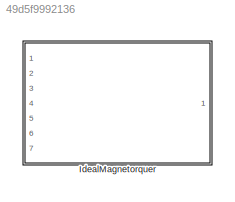
MODEL slx_49d5f9992136
KIND library
CONFIG AbsTol = auto
CONFIG EnableMultiTasking = off
CONFIG FixedStep = auto
CONFIG MaxStep = auto
CONFIG MinStep = auto
CONFIG RelTol = 1e-3
CONFIG SampleTimeConstraint = Unconstrained
CONFIG SolverName = VariableStepAuto
CONFIG StartTime = 0.0
CONFIG StopTime = 10.0
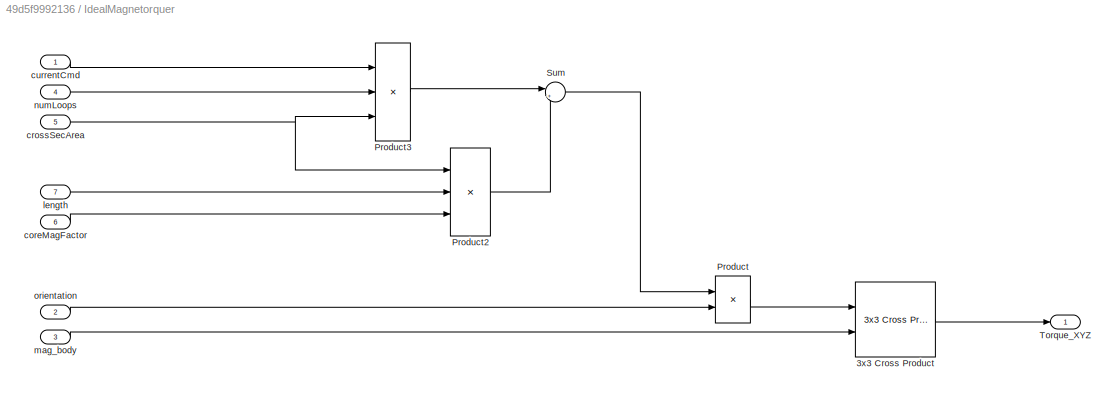
BLOCK [SubSystem] IdealMagnetorquer
  Ports = [7, 1]
  RequestExecContextInheritance = off
BLOCK [Reference] IdealMagnetorquer/3x3 Cross Product  REF=sharedutil/3x3 Cross Product
  Ports = [2, 1]
  SourceBlock = sharedutil/3x3 Cross Product
  SourceProductBaseCode = AE,PW,MT,UV,VE,VP
  SourceType = CrossProduct
BLOCK [Product] IdealMagnetorquer/Product
  Ports = [2, 1]
BLOCK [Product] IdealMagnetorquer/Product2
  Inputs = 3
  Ports = [3, 1]
BLOCK [Product] IdealMagnetorquer/Product3
  Inputs = 3
  Ports = [3, 1]
BLOCK [Sum] IdealMagnetorquer/Sum
  Inputs = |++
  Ports = [2, 1]
BLOCK [Outport] IdealMagnetorquer/Torque_XYZ
BLOCK [Inport] IdealMagnetorquer/coreMagFactor
  Port = 6
BLOCK [Inport] IdealMagnetorquer/crossSecArea
  Port = 5
BLOCK [Inport] IdealMagnetorquer/currentCmd
BLOCK [Inport] IdealMagnetorquer/length
  Port = 7
BLOCK [Inport] IdealMagnetorquer/mag_body
  Port = 3
BLOCK [Inport] IdealMagnetorquer/numLoops
  Port = 4
BLOCK [Inport] IdealMagnetorquer/orientation
  Port = 2
LINE IdealMagnetorquer/3x3 Cross Product:1 -> IdealMagnetorquer/Torque_XYZ:1
LINE IdealMagnetorquer/Product2:1 -> IdealMagnetorquer/Sum:2
LINE IdealMagnetorquer/Product3:1 -> IdealMagnetorquer/Sum:1
LINE IdealMagnetorquer/Product:1 -> IdealMagnetorquer/3x3 Cross Product:1
LINE IdealMagnetorquer/Sum:1 -> IdealMagnetorquer/Product:1
LINE IdealMagnetorquer/coreMagFactor:1 -> IdealMagnetorquer/Product2:3
NET IdealMagnetorquer/crossSecArea:1 -> IdealMagnetorquer/Product2:1, IdealMagnetorquer/Product3:3
LINE IdealMagnetorquer/currentCmd:1 -> IdealMagnetorquer/Product3:1
LINE IdealMagnetorquer/length:1 -> IdealMagnetorquer/Product2:2
LINE IdealMagnetorquer/mag_body:1 -> IdealMagnetorquer/3x3 Cross Product:2
LINE IdealMagnetorquer/numLoops:1 -> IdealMagnetorquer/Product3:2
LINE IdealMagnetorquer/orientation:1 -> IdealMagnetorquer/Product:2
note: NET lines group one-source signal fan-out (src -> all destinations, sorted); 1:1 wires keep LINE
